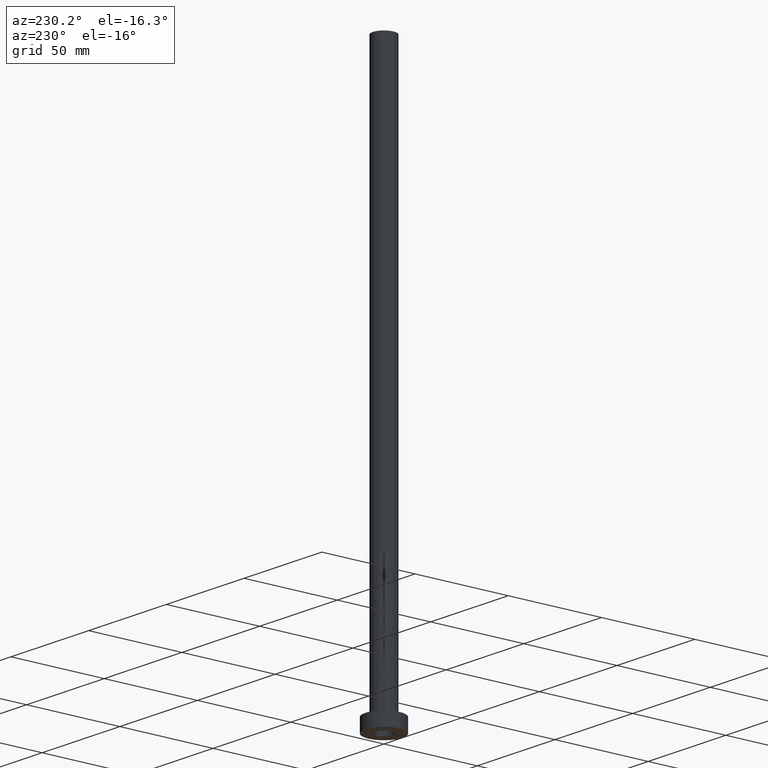
[diagram: clean part render]
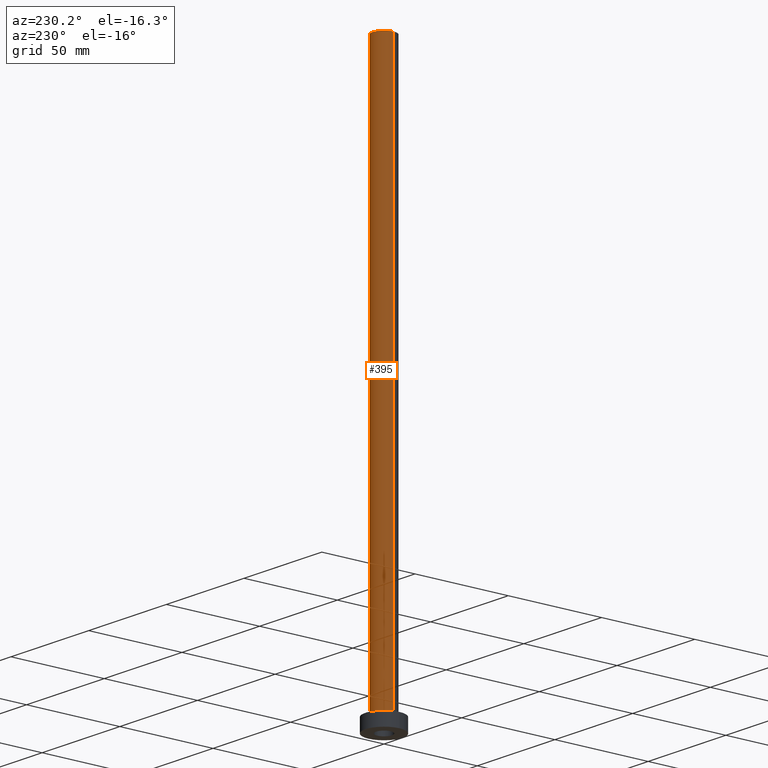
[diagram: same view with one face highlighted and labeled with its STEP entity id]
A machine part, auxiliary view. The second image highlights one B-rep face of the part: STEP entity #395.
In plain terms, the highlighted cylindrical surface (edge-blend (fillet) strip) has radius 6 mm, axis along (-0, -0, -1).
Its self-contained STEP definition (entity closure, byte-faithful):
#5 = DIRECTION ( 'NONE',  ( -0.000000000000000000, -0.000000000000000000, -1.000000000000000000 ) ) ;
#14 = CARTESIAN_POINT ( 'NONE',  ( 6.000000000000000888, 7.347880794884120722E-16, 7.699999999999985079 ) ) ;
#17 = LINE ( 'NONE', #86, #261 ) ;
#21 = DIRECTION ( 'NONE',  ( -1.000000000000000000, 0.000000000000000000, 0.000000000000000000 ) ) ;
#31 = AXIS2_PLACEMENT_3D ( 'NONE', #135, #191, #361 ) ;
#45 = ORIENTED_EDGE ( 'NONE', *, *, #368, .F. ) ;
#64 = VERTEX_POINT ( 'NONE', #369 ) ;
#65 = VERTEX_POINT ( 'NONE', #338 ) ;
#79 = EDGE_CURVE ( 'NONE', #274, #347, #224, .T. ) ;
#86 = CARTESIAN_POINT ( 'NONE',  ( -6.000000000000000888, 0.000000000000000000, 300.0000000000000000 ) ) ;
#89 = CYLINDRICAL_SURFACE ( 'NONE', #153, 6.000000000000000888 ) ;
#115 = ORIENTED_EDGE ( 'NONE', *, *, #366, .F. ) ;
#129 = FACE_OUTER_BOUND ( 'NONE', #336, .T. ) ;
#135 = CARTESIAN_POINT ( 'NONE',  ( 0.000000000000000000, 0.000000000000000000, 7.699999999999985079 ) ) ;
#153 = AXIS2_PLACEMENT_3D ( 'NONE', #228, #196, #21 ) ;
#158 = EDGE_CURVE ( 'NONE', #64, #274, #295, .T. ) ;
#191 = DIRECTION ( 'NONE',  ( 0.000000000000000000, 0.000000000000000000, 1.000000000000000000 ) ) ;
#196 = DIRECTION ( 'NONE',  ( -0.000000000000000000, -0.000000000000000000, -1.000000000000000000 ) ) ;
#204 = ORIENTED_EDGE ( 'NONE', *, *, #158, .T. ) ;
#224 = CIRCLE ( 'NONE', #31, 6.000000000000000888 ) ;
#226 = CARTESIAN_POINT ( 'NONE',  ( 6.000000000000000888, 7.347880794884120722E-16, 300.0000000000000000 ) ) ;
#228 = CARTESIAN_POINT ( 'NONE',  ( 0.000000000000000000, 0.000000000000000000, 300.0000000000000000 ) ) ;
#242 = ORIENTED_EDGE ( 'NONE', *, *, #79, .T. ) ;
#261 = VECTOR ( 'NONE', #367, 1000.000000000000000 ) ;
#268 = CARTESIAN_POINT ( 'NONE',  ( 0.000000000000000000, 0.000000000000000000, 300.0000000000000000 ) ) ;
#271 = DIRECTION ( 'NONE',  ( 1.000000000000000000, 0.000000000000000000, 0.000000000000000000 ) ) ;
#274 = VERTEX_POINT ( 'NONE', #14 ) ;
#276 = CARTESIAN_POINT ( 'NONE',  ( -6.000000000000000888, 0.000000000000000000, 7.699999999999985079 ) ) ;
#295 = LINE ( 'NONE', #226, #297 ) ;
#297 = VECTOR ( 'NONE', #5, 1000.000000000000000 ) ;
#298 = CIRCLE ( 'NONE', #438, 6.000000000000000888 ) ;
#301 = DIRECTION ( 'NONE',  ( 0.000000000000000000, 0.000000000000000000, 1.000000000000000000 ) ) ;
#336 = EDGE_LOOP ( 'NONE', ( #115, #204, #242, #45 ) ) ;
#338 = CARTESIAN_POINT ( 'NONE',  ( -6.000000000000000888, 0.000000000000000000, 300.0000000000000000 ) ) ;
#347 = VERTEX_POINT ( 'NONE', #276 ) ;
#361 = DIRECTION ( 'NONE',  ( 1.000000000000000000, 0.000000000000000000, 0.000000000000000000 ) ) ;
#366 = EDGE_CURVE ( 'NONE', #64, #65, #298, .T. ) ;
#367 = DIRECTION ( 'NONE',  ( -0.000000000000000000, -0.000000000000000000, -1.000000000000000000 ) ) ;
#368 = EDGE_CURVE ( 'NONE', #65, #347, #17, .T. ) ;
#369 = CARTESIAN_POINT ( 'NONE',  ( 6.000000000000000888, 7.347880794884120722E-16, 300.0000000000000000 ) ) ;
#395 = ADVANCED_FACE ( 'NONE', ( #129 ), #89, .T. ) ;
#438 = AXIS2_PLACEMENT_3D ( 'NONE', #268, #301, #271 ) ;